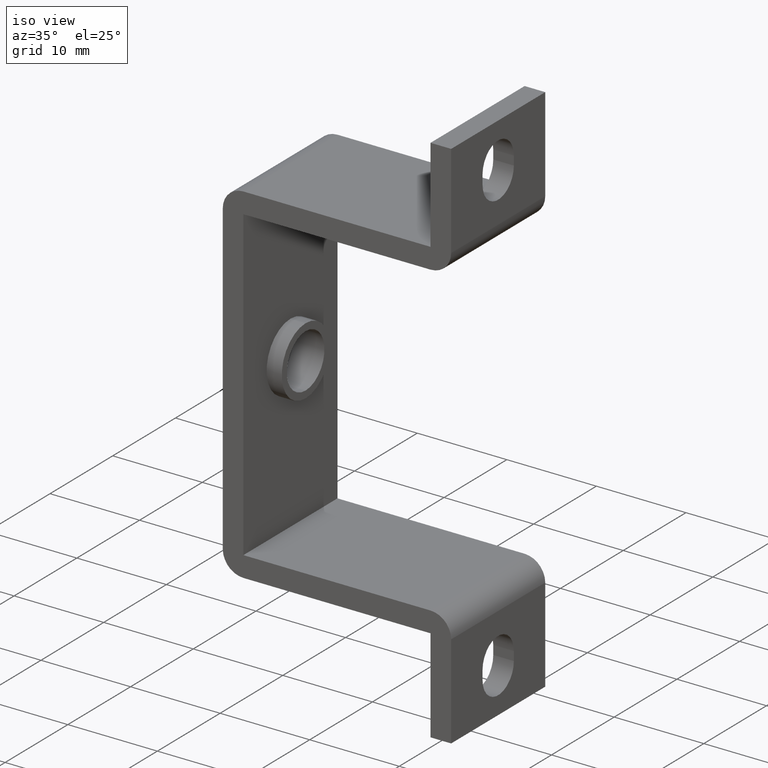
[diagram: clean part render]
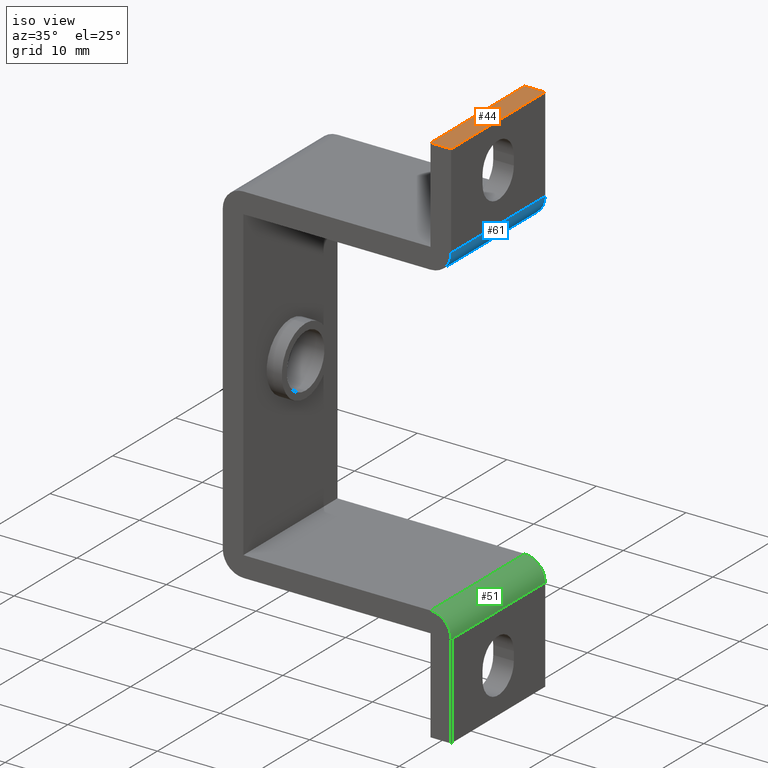
[diagram: same view with three faces highlighted in distinct colors, each labeled with its STEP entity id]
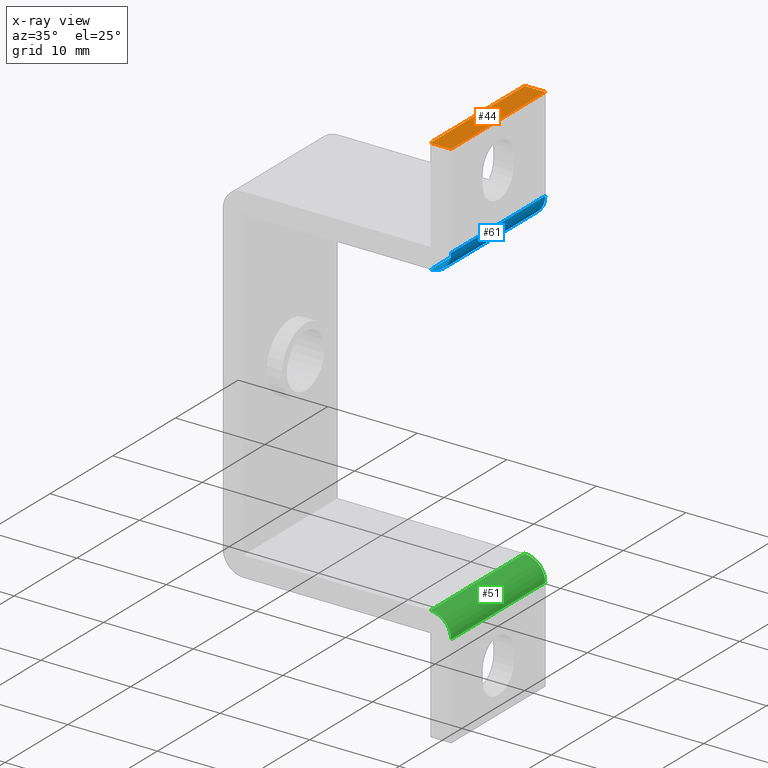
[diagram: x-ray of the same camera — body ghosted, the three highlighted faces saturated]
A machine part, iso view with three faces highlighted in distinct colors.
The next image is the same camera in x-ray (body ghosted, the three faces saturated) — at least one of them is partly hidden behind the body in this view.
Their STEP definitions:

[orange] entity #44 — the highlighted planar face has unit normal (0, 0, -1).
#44=ADVANCED_FACE('',(#117),#116,.F.);
#116=PLANE('',#436);
#117=FACE_OUTER_BOUND('',#437,.T.);
#433=CARTESIAN_POINT('',(-2.30000000000E-01,1.50000000000E+00,6.00000000000E+01));
#434=DIRECTION('',(0.00000000000E+00,0.00000000000E+00,-1.00000000000E+00));
#435=DIRECTION('',(1.00000000000E+00,0.00000000000E+00,0.00000000000E+00));
#436=AXIS2_PLACEMENT_3D('',#433,#434,#435);
#437=EDGE_LOOP('',(#646,#647,#648,#649));
#646=ORIENTED_EDGE('',*,*,#821,.F.);
#647=ORIENTED_EDGE('',*,*,#822,.F.);
#648=ORIENTED_EDGE('',*,*,#823,.T.);
#649=ORIENTED_EDGE('',*,*,#815,.T.);
#815=EDGE_CURVE('',#994,#986,#995,.T.);
#821=EDGE_CURVE('',#1034,#986,#1035,.T.);
#822=EDGE_CURVE('',#1041,#1034,#1042,.T.);
#823=EDGE_CURVE('',#1041,#994,#1048,.T.);
#986=VERTEX_POINT('',#1538);
#994=VERTEX_POINT('',#1543);
#995=LINE('',#1544,#1545);
#1034=VERTEX_POINT('',#1566);
#1035=LINE('',#1567,#1568);
#1041=VERTEX_POINT('',#1570);
#1042=LINE('',#1571,#1572);
#1048=LINE('',#1574,#1575);
#1538=CARTESIAN_POINT('',(0.00000000000E+00,-1.50000000000E+01,6.00000000000E+01));
#1543=CARTESIAN_POINT('',(0.00000000000E+00,0.00000000000E+00,6.00000000000E+01));
#1544=CARTESIAN_POINT('',(0.00000000000E+00,0.00000000000E+00,6.00000000000E+01));
#1545=VECTOR('',#1546,1.50000000000E+01);
#1546=DIRECTION('',(0.00000000000E+00,-1.00000000000E+00,0.00000000000E+00));
#1566=CARTESIAN_POINT('',(2.30000000000E+00,-1.50000000000E+01,6.00000000000E+01));
#1567=CARTESIAN_POINT('',(2.30000000000E+00,-1.50000000000E+01,6.00000000000E+01));
#1568=VECTOR('',#1569,2.30000000000E+00);
#1569=DIRECTION('',(-1.00000000000E+00,0.00000000000E+00,0.00000000000E+00));
#1570=CARTESIAN_POINT('',(2.30000000000E+00,0.00000000000E+00,6.00000000000E+01));
#1571=CARTESIAN_POINT('',(2.30000000000E+00,0.00000000000E+00,6.00000000000E+01));
#1572=VECTOR('',#1573,1.50000000000E+01);
#1573=DIRECTION('',(0.00000000000E+00,-1.00000000000E+00,0.00000000000E+00));
#1574=CARTESIAN_POINT('',(2.30000000000E+00,0.00000000000E+00,6.00000000000E+01));
#1575=VECTOR('',#1576,2.30000000000E+00);
#1576=DIRECTION('',(-1.00000000000E+00,0.00000000000E+00,0.00000000000E+00));

[blue] entity #61 — the highlighted cylindrical surface (edge-blend (fillet) strip) has radius 2.3 mm, axis along (0, -1, 0).
#61=ADVANCED_FACE('',(#290),#289,.T.);
#289=CYLINDRICAL_SURFACE('',#524,2.30000000000E+00);
#290=FACE_OUTER_BOUND('',#525,.T.);
#521=CARTESIAN_POINT('',(-1.40834381902E-16,-7.50000000000E+00,4.95000000000E+01));
#522=DIRECTION('',(0.00000000000E+00,-1.00000000000E+00,0.00000000000E+00));
#523=DIRECTION('',(-0.00000000000E+00,0.00000000000E+00,1.00000000000E+00));
#524=AXIS2_PLACEMENT_3D('',#521,#522,#523);
#525=EDGE_LOOP('',(#748,#749,#750,#751));
#748=ORIENTED_EDGE('',*,*,#833,.T.);
#749=ORIENTED_EDGE('',*,*,#874,.F.);
#750=ORIENTED_EDGE('',*,*,#843,.F.);
#751=ORIENTED_EDGE('',*,*,#875,.T.);
#833=EDGE_CURVE('',#1114,#1107,#1115,.T.);
#843=EDGE_CURVE('',#1175,#1182,#1183,.T.);
#874=EDGE_CURVE('',#1182,#1107,#1387,.T.);
#875=EDGE_CURVE('',#1175,#1114,#1393,.T.);
#1107=VERTEX_POINT('',#1608);
#1114=VERTEX_POINT('',#1612);
#1115=CIRCLE('',#1616,2.30000000000E+00);
#1175=VERTEX_POINT('',#1649);
#1182=VERTEX_POINT('',#1653);
#1183=CIRCLE('',#1657,2.30000000000E+00);
#1387=LINE('',#1774,#1775);
#1393=LINE('',#1777,#1778);
#1608=CARTESIAN_POINT('',(0.00000000000E+00,-1.50000000000E+01,4.72000000000E+01));
#1612=CARTESIAN_POINT('',(2.30000000000E+00,-1.50000000000E+01,4.95000000000E+01));
#1613=CARTESIAN_POINT('',(-1.40834381902E-16,-1.50000000000E+01,4.95000000000E+01));
#1614=DIRECTION('',(-0.00000000000E+00,1.00000000000E+00,0.00000000000E+00));
#1615=DIRECTION('',(-1.00000000000E+00,-0.00000000000E+00,-0.00000000000E+00));
#1616=AXIS2_PLACEMENT_3D('',#1613,#1614,#1615);
#1649=CARTESIAN_POINT('',(2.30000000000E+00,0.00000000000E+00,4.95000000000E+01));
#1653=CARTESIAN_POINT('',(0.00000000000E+00,0.00000000000E+00,4.72000000000E+01));
#1654=CARTESIAN_POINT('',(-1.40834381902E-16,0.00000000000E+00,4.95000000000E+01));
#1655=DIRECTION('',(-0.00000000000E+00,1.00000000000E+00,0.00000000000E+00));
#1656=DIRECTION('',(-1.00000000000E+00,-0.00000000000E+00,-0.00000000000E+00));
#1657=AXIS2_PLACEMENT_3D('',#1654,#1655,#1656);
#1774=CARTESIAN_POINT('',(0.00000000000E+00,0.00000000000E+00,4.72000000000E+01));
#1775=VECTOR('',#1776,1.50000000000E+01);
#1776=DIRECTION('',(0.00000000000E+00,-1.00000000000E+00,0.00000000000E+00));
#1777=CARTESIAN_POINT('',(2.30000000000E+00,0.00000000000E+00,4.95000000000E+01));
#1778=VECTOR('',#1779,1.50000000000E+01);
#1779=DIRECTION('',(0.00000000000E+00,-1.00000000000E+00,0.00000000000E+00));

[green] entity #51 — the highlighted cylindrical surface (edge-blend (fillet) strip) has radius 2.3 mm, axis along (0, -1, -0).
#51=ADVANCED_FACE('',(#187),#186,.T.);
#186=CYLINDRICAL_SURFACE('',#471,2.30000000000E+00);
#187=FACE_OUTER_BOUND('',#472,.T.);
#468=CARTESIAN_POINT('',(-1.40834381902E-16,-7.50000000000E+00,1.05000000000E+01));
#469=DIRECTION('',(0.00000000000E+00,-1.00000000000E+00,-0.00000000000E+00));
#470=DIRECTION('',(-0.00000000000E+00,0.00000000000E+00,-1.00000000000E+00));
#471=AXIS2_PLACEMENT_3D('',#468,#469,#470);
#472=EDGE_LOOP('',(#698,#699,#700,#701));
#698=ORIENTED_EDGE('',*,*,#840,.F.);
#699=ORIENTED_EDGE('',*,*,#855,.F.);
#700=ORIENTED_EDGE('',*,*,#847,.T.);
#701=ORIENTED_EDGE('',*,*,#853,.T.);
#840=EDGE_CURVE('',#1155,#1162,#1163,.T.);
#847=EDGE_CURVE('',#1210,#1203,#1211,.T.);
#853=EDGE_CURVE('',#1203,#1162,#1251,.T.);
#855=EDGE_CURVE('',#1210,#1155,#1263,.T.);
#1155=VERTEX_POINT('',#1637);
#1162=VERTEX_POINT('',#1641);
#1163=CIRCLE('',#1645,2.30000000000E+00);
#1203=VERTEX_POINT('',#1666);
#1210=VERTEX_POINT('',#1670);
#1211=CIRCLE('',#1674,2.30000000000E+00);
#1251=LINE('',#1695,#1696);
#1263=LINE('',#1701,#1702);
#1637=CARTESIAN_POINT('',(2.30000000000E+00,-1.50000000000E+01,1.05000000000E+01));
#1641=CARTESIAN_POINT('',(0.00000000000E+00,-1.50000000000E+01,1.28000000000E+01));
#1642=CARTESIAN_POINT('',(-1.40834381902E-16,-1.50000000000E+01,1.05000000000E+01));
#1643=DIRECTION('',(0.00000000000E+00,-1.00000000000E+00,0.00000000000E+00));
#1644=DIRECTION('',(-1.00000000000E+00,-0.00000000000E+00,-0.00000000000E+00));
#1645=AXIS2_PLACEMENT_3D('',#1642,#1643,#1644);
#1666=CARTESIAN_POINT('',(0.00000000000E+00,0.00000000000E+00,1.28000000000E+01));
#1670=CARTESIAN_POINT('',(2.30000000000E+00,0.00000000000E+00,1.05000000000E+01));
#1671=CARTESIAN_POINT('',(-1.40834381902E-16,0.00000000000E+00,1.05000000000E+01));
#1672=DIRECTION('',(0.00000000000E+00,-1.00000000000E+00,0.00000000000E+00));
#1673=DIRECTION('',(-1.00000000000E+00,-0.00000000000E+00,-0.00000000000E+00));
#1674=AXIS2_PLACEMENT_3D('',#1671,#1672,#1673);
#1695=CARTESIAN_POINT('',(0.00000000000E+00,0.00000000000E+00,1.28000000000E+01));
#1696=VECTOR('',#1697,1.50000000000E+01);
#1697=DIRECTION('',(0.00000000000E+00,-1.00000000000E+00,0.00000000000E+00));
#1701=CARTESIAN_POINT('',(2.30000000000E+00,0.00000000000E+00,1.05000000000E+01));
#1702=VECTOR('',#1703,1.50000000000E+01);
#1703=DIRECTION('',(0.00000000000E+00,-1.00000000000E+00,0.00000000000E+00));